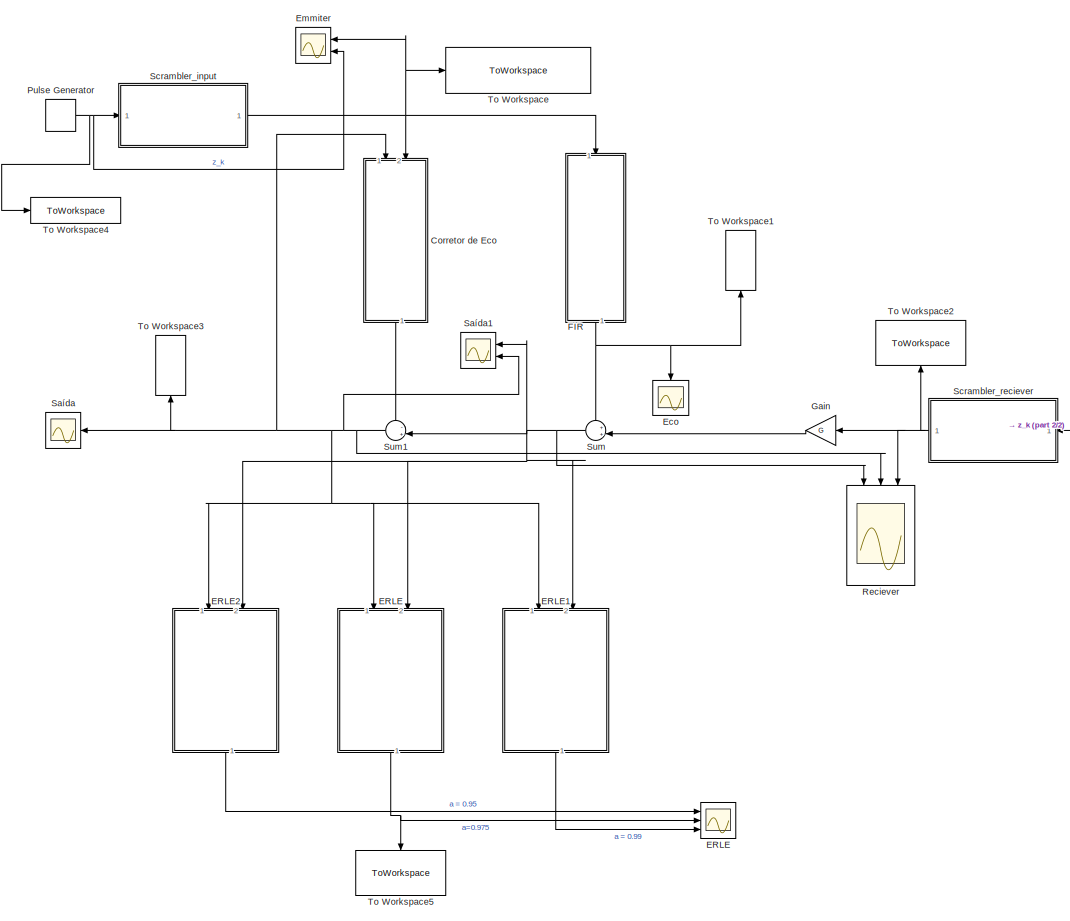
[diagram: root canvas - part 1/2, most of the canvas]
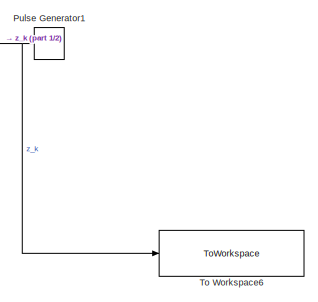
[diagram: root canvas - part 2/2, middle right region]
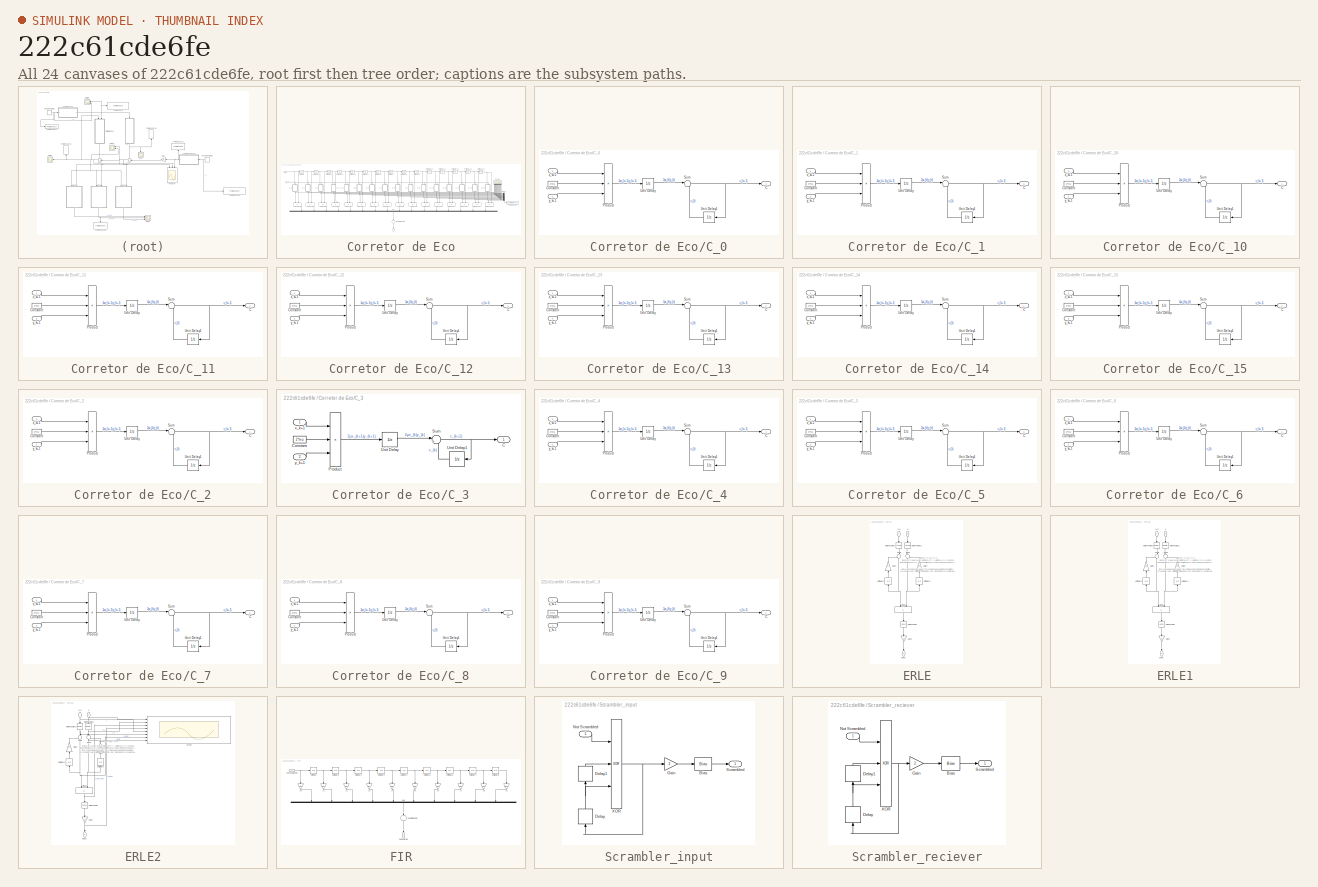
[diagram: thumbnail index - all 24 canvases of the model, root first then tree order]
MODEL slx_222c61cde6fe
KIND model
CONFIG AbsTol = auto
CONFIG EnableMultiTasking = off
CONFIG FixedStep = sampleTime
CONFIG MaxStep = auto
CONFIG MinStep = auto
CONFIG RelTol = 1e-3
CONFIG SampleTimeConstraint = Unconstrained
CONFIG Solver = FixedStepAuto
CONFIG SolverName = FixedStepAuto
CONFIG StartTime = 0.0
CONFIG StopTime = 1000
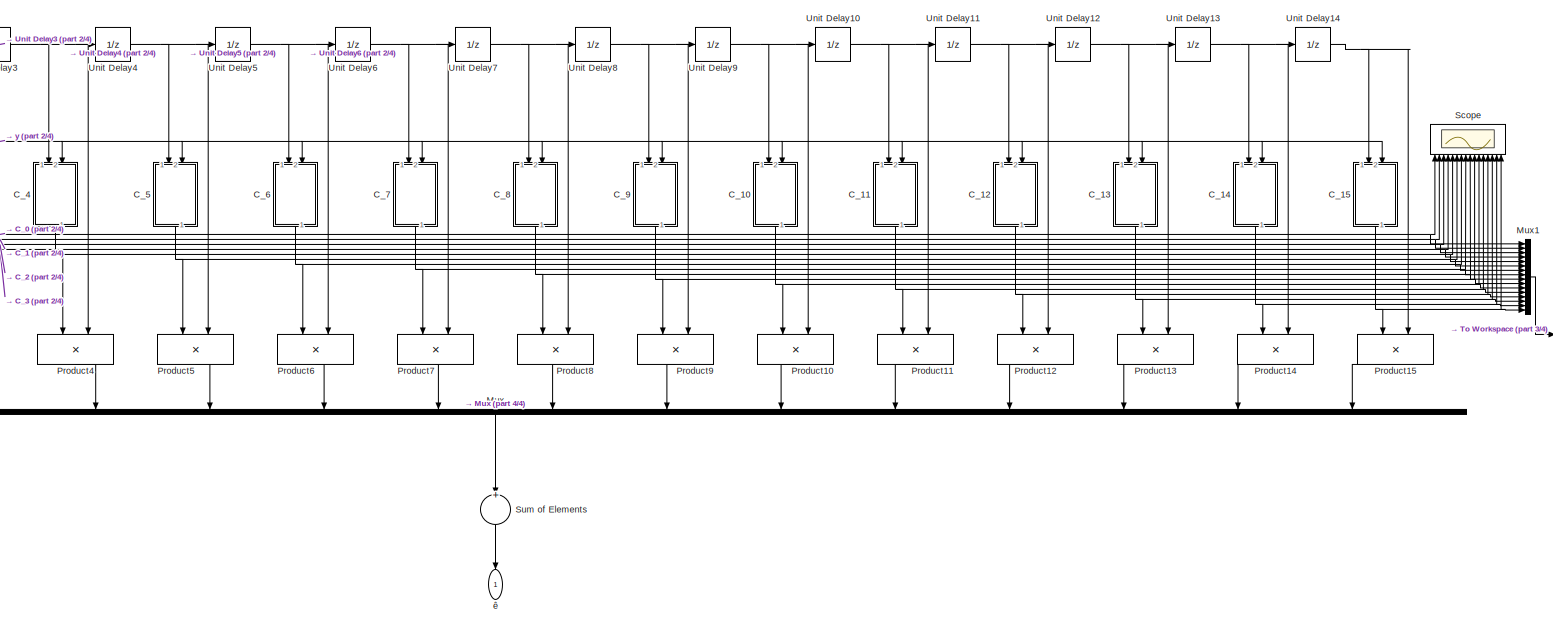
[diagram: Corretor de Eco - part 1/4, center side, full height]
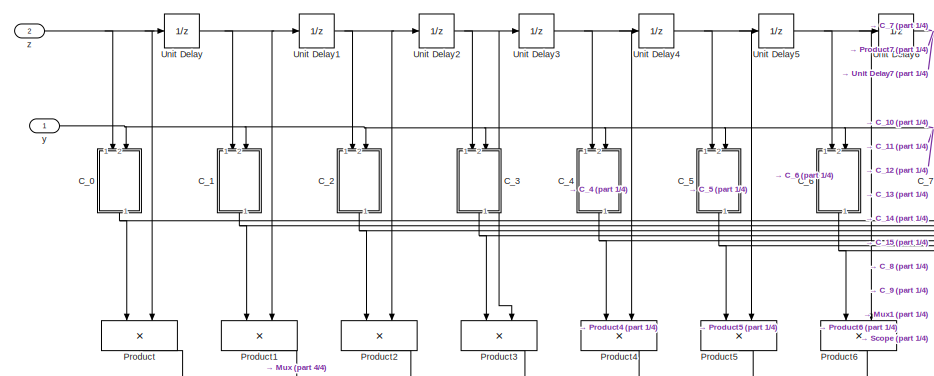
[diagram: Corretor de Eco - part 2/4, middle left region]
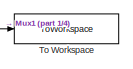
[diagram: Corretor de Eco - part 3/4, middle right region]
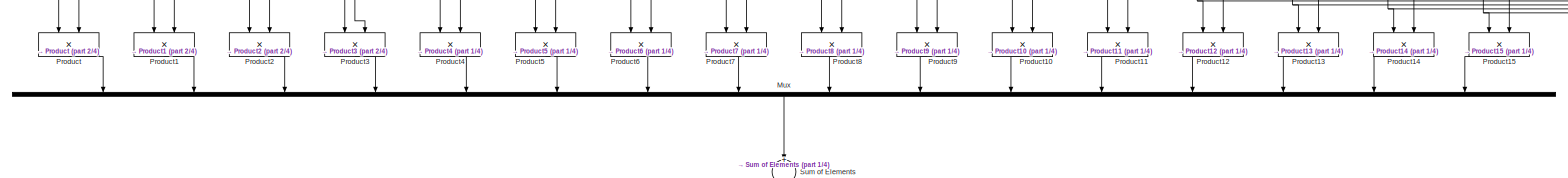
[diagram: Corretor de Eco - part 4/4, full width, middle band]
BLOCK [SubSystem] Corretor de Eco
  Ports = [2, 1]
  RequestExecContextInheritance = off
BLOCK [SubSystem] Corretor de Eco/C_0
  Ports = [2, 1]
  RequestExecContextInheritance = off
BLOCK [Outport] Corretor de Eco/C_0/C
  IconDisplay = Port number
BLOCK [Constant] Corretor de Eco/C_0/Constant
  SampleTime = sampleTime
  Value = 2*mu
BLOCK [Product] Corretor de Eco/C_0/Product
  InputSameDT = off
  Inputs = 3
  OutDataTypeStr = Inherit: Inherit via internal rule
  Ports = [3, 1]
  RndMeth = Floor
  SaturateOnIntegerOverflow = off
BLOCK [Sum] Corretor de Eco/C_0/Sum
  IconShape = round
  InputSameDT = off
  Inputs = |++
  OutDataTypeStr = Inherit: Inherit via internal rule
  Ports = [2, 1]
  SaturateOnIntegerOverflow = off
BLOCK [UnitDelay] Corretor de Eco/C_0/Unit Delay
  HasFrameUpgradeWarning = on
  SampleTime = -1
BLOCK [UnitDelay] Corretor de Eco/C_0/Unit Delay1
  HasFrameUpgradeWarning = on
  SampleTime = -1
BLOCK [Inport] Corretor de Eco/C_0/x_k+1
  IconDisplay = Port number
BLOCK [Inport] Corretor de Eco/C_0/y_k+1
  IconDisplay = Port number
  Port = 2
BLOCK [SubSystem] Corretor de Eco/C_1
  Ports = [2, 1]
  RequestExecContextInheritance = off
BLOCK [Outport] Corretor de Eco/C_1/C
  IconDisplay = Port number
BLOCK [Constant] Corretor de Eco/C_1/Constant
  SampleTime = sampleTime
  Value = 2*mu
BLOCK [Product] Corretor de Eco/C_1/Product
  InputSameDT = off
  Inputs = 3
  OutDataTypeStr = Inherit: Inherit via internal rule
  Ports = [3, 1]
  RndMeth = Floor
  SaturateOnIntegerOverflow = off
BLOCK [Sum] Corretor de Eco/C_1/Sum
  IconShape = round
  InputSameDT = off
  Inputs = |++
  OutDataTypeStr = Inherit: Inherit via internal rule
  Ports = [2, 1]
  SaturateOnIntegerOverflow = off
BLOCK [UnitDelay] Corretor de Eco/C_1/Unit Delay
  HasFrameUpgradeWarning = on
  SampleTime = -1
BLOCK [UnitDelay] Corretor de Eco/C_1/Unit Delay1
  HasFrameUpgradeWarning = on
  SampleTime = -1
BLOCK [Inport] Corretor de Eco/C_1/x_k+1
  IconDisplay = Port number
BLOCK [Inport] Corretor de Eco/C_1/y_k+1
  IconDisplay = Port number
  Port = 2
BLOCK [SubSystem] Corretor de Eco/C_10
  Ports = [2, 1]
  RequestExecContextInheritance = off
BLOCK [Outport] Corretor de Eco/C_10/C
  IconDisplay = Port number
BLOCK [Constant] Corretor de Eco/C_10/Constant
  Value = 2*mu
BLOCK [Product] Corretor de Eco/C_10/Product
  InputSameDT = off
  Inputs = 3
  OutDataTypeStr = Inherit: Inherit via internal rule
  Ports = [3, 1]
  RndMeth = Floor
  SaturateOnIntegerOverflow = off
BLOCK [Sum] Corretor de Eco/C_10/Sum
  IconShape = round
  InputSameDT = off
  Inputs = |++
  OutDataTypeStr = Inherit: Inherit via internal rule
  Ports = [2, 1]
  SaturateOnIntegerOverflow = off
BLOCK [UnitDelay] Corretor de Eco/C_10/Unit Delay
  HasFrameUpgradeWarning = on
  SampleTime = -1
BLOCK [UnitDelay] Corretor de Eco/C_10/Unit Delay1
  HasFrameUpgradeWarning = on
  SampleTime = -1
BLOCK [Inport] Corretor de Eco/C_10/x_k+1
  IconDisplay = Port number
BLOCK [Inport] Corretor de Eco/C_10/y_k+1
  IconDisplay = Port number
  Port = 2
BLOCK [SubSystem] Corretor de Eco/C_11
  Ports = [2, 1]
  RequestExecContextInheritance = off
BLOCK [Outport] Corretor de Eco/C_11/C
  IconDisplay = Port number
BLOCK [Constant] Corretor de Eco/C_11/Constant
  Value = 2*mu
BLOCK [Product] Corretor de Eco/C_11/Product
  InputSameDT = off
  Inputs = 3
  OutDataTypeStr = Inherit: Inherit via internal rule
  Ports = [3, 1]
  RndMeth = Floor
  SaturateOnIntegerOverflow = off
BLOCK [Sum] Corretor de Eco/C_11/Sum
  IconShape = round
  InputSameDT = off
  Inputs = |++
  OutDataTypeStr = Inherit: Inherit via internal rule
  Ports = [2, 1]
  SaturateOnIntegerOverflow = off
BLOCK [UnitDelay] Corretor de Eco/C_11/Unit Delay
  HasFrameUpgradeWarning = on
  SampleTime = -1
BLOCK [UnitDelay] Corretor de Eco/C_11/Unit Delay1
  HasFrameUpgradeWarning = on
  SampleTime = -1
BLOCK [Inport] Corretor de Eco/C_11/x_k+1
  IconDisplay = Port number
BLOCK [Inport] Corretor de Eco/C_11/y_k+1
  IconDisplay = Port number
  Port = 2
BLOCK [SubSystem] Corretor de Eco/C_12
  Ports = [2, 1]
  RequestExecContextInheritance = off
BLOCK [Outport] Corretor de Eco/C_12/C
  IconDisplay = Port number
BLOCK [Constant] Corretor de Eco/C_12/Constant
  Value = 2*mu
BLOCK [Product] Corretor de Eco/C_12/Product
  InputSameDT = off
  Inputs = 3
  OutDataTypeStr = Inherit: Inherit via internal rule
  Ports = [3, 1]
  RndMeth = Floor
  SaturateOnIntegerOverflow = off
BLOCK [Sum] Corretor de Eco/C_12/Sum
  IconShape = round
  InputSameDT = off
  Inputs = |++
  OutDataTypeStr = Inherit: Inherit via internal rule
  Ports = [2, 1]
  SaturateOnIntegerOverflow = off
BLOCK [UnitDelay] Corretor de Eco/C_12/Unit Delay
  HasFrameUpgradeWarning = on
  SampleTime = -1
BLOCK [UnitDelay] Corretor de Eco/C_12/Unit Delay1
  HasFrameUpgradeWarning = on
  SampleTime = -1
BLOCK [Inport] Corretor de Eco/C_12/x_k+1
  IconDisplay = Port number
BLOCK [Inport] Corretor de Eco/C_12/y_k+1
  IconDisplay = Port number
  Port = 2
BLOCK [SubSystem] Corretor de Eco/C_13
  Ports = [2, 1]
  RequestExecContextInheritance = off
BLOCK [Outport] Corretor de Eco/C_13/C
  IconDisplay = Port number
BLOCK [Constant] Corretor de Eco/C_13/Constant
  Value = 2*mu
BLOCK [Product] Corretor de Eco/C_13/Product
  InputSameDT = off
  Inputs = 3
  OutDataTypeStr = Inherit: Inherit via internal rule
  Ports = [3, 1]
  RndMeth = Floor
  SaturateOnIntegerOverflow = off
BLOCK [Sum] Corretor de Eco/C_13/Sum
  IconShape = round
  InputSameDT = off
  Inputs = |++
  OutDataTypeStr = Inherit: Inherit via internal rule
  Ports = [2, 1]
  SaturateOnIntegerOverflow = off
BLOCK [UnitDelay] Corretor de Eco/C_13/Unit Delay
  HasFrameUpgradeWarning = on
  SampleTime = -1
BLOCK [UnitDelay] Corretor de Eco/C_13/Unit Delay1
  HasFrameUpgradeWarning = on
  SampleTime = -1
BLOCK [Inport] Corretor de Eco/C_13/x_k+1
  IconDisplay = Port number
BLOCK [Inport] Corretor de Eco/C_13/y_k+1
  IconDisplay = Port number
  Port = 2
BLOCK [SubSystem] Corretor de Eco/C_14
  Ports = [2, 1]
  RequestExecContextInheritance = off
BLOCK [Outport] Corretor de Eco/C_14/C
  IconDisplay = Port number
BLOCK [Constant] Corretor de Eco/C_14/Constant
  Value = 2*mu
BLOCK [Product] Corretor de Eco/C_14/Product
  InputSameDT = off
  Inputs = 3
  OutDataTypeStr = Inherit: Inherit via internal rule
  Ports = [3, 1]
  RndMeth = Floor
  SaturateOnIntegerOverflow = off
BLOCK [Sum] Corretor de Eco/C_14/Sum
  IconShape = round
  InputSameDT = off
  Inputs = |++
  OutDataTypeStr = Inherit: Inherit via internal rule
  Ports = [2, 1]
  SaturateOnIntegerOverflow = off
BLOCK [UnitDelay] Corretor de Eco/C_14/Unit Delay
  HasFrameUpgradeWarning = on
  SampleTime = -1
BLOCK [UnitDelay] Corretor de Eco/C_14/Unit Delay1
  HasFrameUpgradeWarning = on
  SampleTime = -1
BLOCK [Inport] Corretor de Eco/C_14/x_k+1
  IconDisplay = Port number
BLOCK [Inport] Corretor de Eco/C_14/y_k+1
  IconDisplay = Port number
  Port = 2
BLOCK [SubSystem] Corretor de Eco/C_15
  Ports = [2, 1]
  RequestExecContextInheritance = off
BLOCK [Outport] Corretor de Eco/C_15/C
  IconDisplay = Port number
BLOCK [Constant] Corretor de Eco/C_15/Constant
  Value = 2*mu
BLOCK [Product] Corretor de Eco/C_15/Product
  InputSameDT = off
  Inputs = 3
  OutDataTypeStr = Inherit: Inherit via internal rule
  Ports = [3, 1]
  RndMeth = Floor
  SaturateOnIntegerOverflow = off
BLOCK [Sum] Corretor de Eco/C_15/Sum
  IconShape = round
  InputSameDT = off
  Inputs = |++
  OutDataTypeStr = Inherit: Inherit via internal rule
  Ports = [2, 1]
  SaturateOnIntegerOverflow = off
BLOCK [UnitDelay] Corretor de Eco/C_15/Unit Delay
  HasFrameUpgradeWarning = on
  SampleTime = -1
BLOCK [UnitDelay] Corretor de Eco/C_15/Unit Delay1
  HasFrameUpgradeWarning = on
  SampleTime = -1
BLOCK [Inport] Corretor de Eco/C_15/x_k+1
  IconDisplay = Port number
BLOCK [Inport] Corretor de Eco/C_15/y_k+1
  IconDisplay = Port number
  Port = 2
BLOCK [SubSystem] Corretor de Eco/C_2
  Ports = [2, 1]
  RequestExecContextInheritance = off
BLOCK [Outport] Corretor de Eco/C_2/C
  IconDisplay = Port number
BLOCK [Constant] Corretor de Eco/C_2/Constant
  Value = 2*mu
BLOCK [Product] Corretor de Eco/C_2/Product
  InputSameDT = off
  Inputs = 3
  OutDataTypeStr = Inherit: Inherit via internal rule
  Ports = [3, 1]
  RndMeth = Floor
  SaturateOnIntegerOverflow = off
BLOCK [Sum] Corretor de Eco/C_2/Sum
  IconShape = round
  InputSameDT = off
  Inputs = |++
  OutDataTypeStr = Inherit: Inherit via internal rule
  Ports = [2, 1]
  SaturateOnIntegerOverflow = off
BLOCK [UnitDelay] Corretor de Eco/C_2/Unit Delay
  HasFrameUpgradeWarning = on
  SampleTime = -1
BLOCK [UnitDelay] Corretor de Eco/C_2/Unit Delay1
  HasFrameUpgradeWarning = on
  SampleTime = -1
BLOCK [Inport] Corretor de Eco/C_2/x_k+1
  IconDisplay = Port number
BLOCK [Inport] Corretor de Eco/C_2/y_k+1
  IconDisplay = Port number
  Port = 2
BLOCK [SubSystem] Corretor de Eco/C_3
  Ports = [2, 1]
  RequestExecContextInheritance = off
BLOCK [Outport] Corretor de Eco/C_3/C
  IconDisplay = Port number
BLOCK [Constant] Corretor de Eco/C_3/Constant
  Value = 2*mu
BLOCK [Product] Corretor de Eco/C_3/Product
  InputSameDT = off
  Inputs = 3
  OutDataTypeStr = Inherit: Inherit via internal rule
  Ports = [3, 1]
  RndMeth = Floor
  SaturateOnIntegerOverflow = off
BLOCK [Sum] Corretor de Eco/C_3/Sum
  IconShape = round
  InputSameDT = off
  Inputs = |++
  OutDataTypeStr = Inherit: Inherit via internal rule
  Ports = [2, 1]
  SaturateOnIntegerOverflow = off
BLOCK [UnitDelay] Corretor de Eco/C_3/Unit Delay
  HasFrameUpgradeWarning = on
  SampleTime = -1
BLOCK [UnitDelay] Corretor de Eco/C_3/Unit Delay1
  HasFrameUpgradeWarning = on
  SampleTime = -1
BLOCK [Inport] Corretor de Eco/C_3/x_k+1
  IconDisplay = Port number
BLOCK [Inport] Corretor de Eco/C_3/y_k+1
  IconDisplay = Port number
  Port = 2
BLOCK [SubSystem] Corretor de Eco/C_4
  Ports = [2, 1]
  RequestExecContextInheritance = off
BLOCK [Outport] Corretor de Eco/C_4/C
  IconDisplay = Port number
BLOCK [Constant] Corretor de Eco/C_4/Constant
  Value = 2*mu
BLOCK [Product] Corretor de Eco/C_4/Product
  InputSameDT = off
  Inputs = 3
  OutDataTypeStr = Inherit: Inherit via internal rule
  Ports = [3, 1]
  RndMeth = Floor
  SaturateOnIntegerOverflow = off
BLOCK [Sum] Corretor de Eco/C_4/Sum
  IconShape = round
  InputSameDT = off
  Inputs = |++
  OutDataTypeStr = Inherit: Inherit via internal rule
  Ports = [2, 1]
  SaturateOnIntegerOverflow = off
BLOCK [UnitDelay] Corretor de Eco/C_4/Unit Delay
  HasFrameUpgradeWarning = on
  SampleTime = -1
BLOCK [UnitDelay] Corretor de Eco/C_4/Unit Delay1
  HasFrameUpgradeWarning = on
  SampleTime = -1
BLOCK [Inport] Corretor de Eco/C_4/x_k+1
  IconDisplay = Port number
BLOCK [Inport] Corretor de Eco/C_4/y_k+1
  IconDisplay = Port number
  Port = 2
BLOCK [SubSystem] Corretor de Eco/C_5
  Ports = [2, 1]
  RequestExecContextInheritance = off
BLOCK [Outport] Corretor de Eco/C_5/C
  IconDisplay = Port number
BLOCK [Constant] Corretor de Eco/C_5/Constant
  Value = 2*mu
BLOCK [Product] Corretor de Eco/C_5/Product
  InputSameDT = off
  Inputs = 3
  OutDataTypeStr = Inherit: Inherit via internal rule
  Ports = [3, 1]
  RndMeth = Floor
  SaturateOnIntegerOverflow = off
BLOCK [Sum] Corretor de Eco/C_5/Sum
  IconShape = round
  InputSameDT = off
  Inputs = |++
  OutDataTypeStr = Inherit: Inherit via internal rule
  Ports = [2, 1]
  SaturateOnIntegerOverflow = off
BLOCK [UnitDelay] Corretor de Eco/C_5/Unit Delay
  HasFrameUpgradeWarning = on
  SampleTime = -1
BLOCK [UnitDelay] Corretor de Eco/C_5/Unit Delay1
  HasFrameUpgradeWarning = on
  SampleTime = -1
BLOCK [Inport] Corretor de Eco/C_5/x_k+1
  IconDisplay = Port number
BLOCK [Inport] Corretor de Eco/C_5/y_k+1
  IconDisplay = Port number
  Port = 2
BLOCK [SubSystem] Corretor de Eco/C_6
  Ports = [2, 1]
  RequestExecContextInheritance = off
BLOCK [Outport] Corretor de Eco/C_6/C
  IconDisplay = Port number
BLOCK [Constant] Corretor de Eco/C_6/Constant
  Value = 2*mu
BLOCK [Product] Corretor de Eco/C_6/Product
  InputSameDT = off
  Inputs = 3
  OutDataTypeStr = Inherit: Inherit via internal rule
  Ports = [3, 1]
  RndMeth = Floor
  SaturateOnIntegerOverflow = off
BLOCK [Sum] Corretor de Eco/C_6/Sum
  IconShape = round
  InputSameDT = off
  Inputs = |++
  OutDataTypeStr = Inherit: Inherit via internal rule
  Ports = [2, 1]
  SaturateOnIntegerOverflow = off
BLOCK [UnitDelay] Corretor de Eco/C_6/Unit Delay
  HasFrameUpgradeWarning = on
  SampleTime = -1
BLOCK [UnitDelay] Corretor de Eco/C_6/Unit Delay1
  HasFrameUpgradeWarning = on
  SampleTime = -1
BLOCK [Inport] Corretor de Eco/C_6/x_k+1
  IconDisplay = Port number
BLOCK [Inport] Corretor de Eco/C_6/y_k+1
  IconDisplay = Port number
  Port = 2
BLOCK [SubSystem] Corretor de Eco/C_7
  Ports = [2, 1]
  RequestExecContextInheritance = off
BLOCK [Outport] Corretor de Eco/C_7/C
  IconDisplay = Port number
BLOCK [Constant] Corretor de Eco/C_7/Constant
  Value = 2*mu
BLOCK [Product] Corretor de Eco/C_7/Product
  InputSameDT = off
  Inputs = 3
  OutDataTypeStr = Inherit: Inherit via internal rule
  Ports = [3, 1]
  RndMeth = Floor
  SaturateOnIntegerOverflow = off
BLOCK [Sum] Corretor de Eco/C_7/Sum
  IconShape = round
  InputSameDT = off
  Inputs = |++
  OutDataTypeStr = Inherit: Inherit via internal rule
  Ports = [2, 1]
  SaturateOnIntegerOverflow = off
BLOCK [UnitDelay] Corretor de Eco/C_7/Unit Delay
  HasFrameUpgradeWarning = on
  SampleTime = -1
BLOCK [UnitDelay] Corretor de Eco/C_7/Unit Delay1
  HasFrameUpgradeWarning = on
  SampleTime = -1
BLOCK [Inport] Corretor de Eco/C_7/x_k+1
  IconDisplay = Port number
BLOCK [Inport] Corretor de Eco/C_7/y_k+1
  IconDisplay = Port number
  Port = 2
BLOCK [SubSystem] Corretor de Eco/C_8
  Ports = [2, 1]
  RequestExecContextInheritance = off
BLOCK [Outport] Corretor de Eco/C_8/C
  IconDisplay = Port number
BLOCK [Constant] Corretor de Eco/C_8/Constant
  Value = 2*mu
BLOCK [Product] Corretor de Eco/C_8/Product
  InputSameDT = off
  Inputs = 3
  OutDataTypeStr = Inherit: Inherit via internal rule
  Ports = [3, 1]
  RndMeth = Floor
  SaturateOnIntegerOverflow = off
BLOCK [Sum] Corretor de Eco/C_8/Sum
  IconShape = round
  InputSameDT = off
  Inputs = |++
  OutDataTypeStr = Inherit: Inherit via internal rule
  Ports = [2, 1]
  SaturateOnIntegerOverflow = off
BLOCK [UnitDelay] Corretor de Eco/C_8/Unit Delay
  HasFrameUpgradeWarning = on
  SampleTime = -1
BLOCK [UnitDelay] Corretor de Eco/C_8/Unit Delay1
  HasFrameUpgradeWarning = on
  SampleTime = -1
BLOCK [Inport] Corretor de Eco/C_8/x_k+1
  IconDisplay = Port number
BLOCK [Inport] Corretor de Eco/C_8/y_k+1
  IconDisplay = Port number
  Port = 2
BLOCK [SubSystem] Corretor de Eco/C_9
  Ports = [2, 1]
  RequestExecContextInheritance = off
BLOCK [Outport] Corretor de Eco/C_9/C
  IconDisplay = Port number
BLOCK [Constant] Corretor de Eco/C_9/Constant
  Value = 2*mu
BLOCK [Product] Corretor de Eco/C_9/Product
  InputSameDT = off
  Inputs = 3
  OutDataTypeStr = Inherit: Inherit via internal rule
  Ports = [3, 1]
  RndMeth = Floor
  SaturateOnIntegerOverflow = off
BLOCK [Sum] Corretor de Eco/C_9/Sum
  IconShape = round
  InputSameDT = off
  Inputs = |++
  OutDataTypeStr = Inherit: Inherit via internal rule
  Ports = [2, 1]
  SaturateOnIntegerOverflow = off
BLOCK [UnitDelay] Corretor de Eco/C_9/Unit Delay
  HasFrameUpgradeWarning = on
  SampleTime = -1
BLOCK [UnitDelay] Corretor de Eco/C_9/Unit Delay1
  HasFrameUpgradeWarning = on
  SampleTime = -1
BLOCK [Inport] Corretor de Eco/C_9/x_k+1
  IconDisplay = Port number
BLOCK [Inport] Corretor de Eco/C_9/y_k+1
  IconDisplay = Port number
  Port = 2
BLOCK [Mux] Corretor de Eco/Mux
  DisplayOption = bar
  Inputs = 16
  Ports = [16, 1]
BLOCK [Mux] Corretor de Eco/Mux1
  DisplayOption = bar
  Inputs = 16
  Ports = [16, 1]
BLOCK [Product] Corretor de Eco/Product
  InputSameDT = off
  OutDataTypeStr = Inherit: Inherit via internal rule
  Ports = [2, 1]
  RndMeth = Floor
  SaturateOnIntegerOverflow = off
BLOCK [Product] Corretor de Eco/Product1
  InputSameDT = off
  OutDataTypeStr = Inherit: Inherit via internal rule
  Ports = [2, 1]
  RndMeth = Floor
  SaturateOnIntegerOverflow = off
BLOCK [Product] Corretor de Eco/Product10
  InputSameDT = off
  OutDataTypeStr = Inherit: Inherit via internal rule
  Ports = [2, 1]
  RndMeth = Floor
  SaturateOnIntegerOverflow = off
BLOCK [Product] Corretor de Eco/Product11
  InputSameDT = off
  OutDataTypeStr = Inherit: Inherit via internal rule
  Ports = [2, 1]
  RndMeth = Floor
  SaturateOnIntegerOverflow = off
BLOCK [Product] Corretor de Eco/Product12
  InputSameDT = off
  OutDataTypeStr = Inherit: Inherit via internal rule
  Ports = [2, 1]
  RndMeth = Floor
  SaturateOnIntegerOverflow = off
BLOCK [Product] Corretor de Eco/Product13
  InputSameDT = off
  OutDataTypeStr = Inherit: Inherit via internal rule
  Ports = [2, 1]
  RndMeth = Floor
  SaturateOnIntegerOverflow = off
BLOCK [Product] Corretor de Eco/Product14
  InputSameDT = off
  OutDataTypeStr = Inherit: Inherit via internal rule
  Ports = [2, 1]
  RndMeth = Floor
  SaturateOnIntegerOverflow = off
BLOCK [Product] Corretor de Eco/Product15
  InputSameDT = off
  OutDataTypeStr = Inherit: Inherit via internal rule
  Ports = [2, 1]
  RndMeth = Floor
  SaturateOnIntegerOverflow = off
BLOCK [Product] Corretor de Eco/Product2
  InputSameDT = off
  OutDataTypeStr = Inherit: Inherit via internal rule
  Ports = [2, 1]
  RndMeth = Floor
  SaturateOnIntegerOverflow = off
BLOCK [Product] Corretor de Eco/Product3
  InputSameDT = off
  OutDataTypeStr = Inherit: Inherit via internal rule
  Ports = [2, 1]
  RndMeth = Floor
  SaturateOnIntegerOverflow = off
BLOCK [Product] Corretor de Eco/Product4
  InputSameDT = off
  OutDataTypeStr = Inherit: Inherit via internal rule
  Ports = [2, 1]
  RndMeth = Floor
  SaturateOnIntegerOverflow = off
BLOCK [Product] Corretor de Eco/Product5
  InputSameDT = off
  OutDataTypeStr = Inherit: Inherit via internal rule
  Ports = [2, 1]
  RndMeth = Floor
  SaturateOnIntegerOverflow = off
BLOCK [Product] Corretor de Eco/Product6
  InputSameDT = off
  OutDataTypeStr = Inherit: Inherit via internal rule
  Ports = [2, 1]
  RndMeth = Floor
  SaturateOnIntegerOverflow = off
BLOCK [Product] Corretor de Eco/Product7
  InputSameDT = off
  OutDataTypeStr = Inherit: Inherit via internal rule
  Ports = [2, 1]
  RndMeth = Floor
  SaturateOnIntegerOverflow = off
BLOCK [Product] Corretor de Eco/Product8
  InputSameDT = off
  OutDataTypeStr = Inherit: Inherit via internal rule
  Ports = [2, 1]
  RndMeth = Floor
  SaturateOnIntegerOverflow = off
BLOCK [Product] Corretor de Eco/Product9
  InputSameDT = off
  OutDataTypeStr = Inherit: Inherit via internal rule
  Ports = [2, 1]
  RndMeth = Floor
  SaturateOnIntegerOverflow = off
BLOCK [Scope] Corretor de Eco/Scope
  Floating = off
  NumInputPorts = 16
  Ports = [16]
  ScopeSpecificationString = Simulink.scopes.TimeScopeBlockCfg('CurrentConfiguration', extmgr.ConfigurationSet(extmgr.Configuration('Core','General UI',true),extmgr.Configuration('Core','Source UI',true),extmgr.Configuration('Sources','WiredSimulink',true,'DataLoggingVariableName','ScopeData1'),extmgr.Configuration('Visuals','Time Domain',true,'SerializedDisplays',{struct('MinYLimReal','-0.15387','MaxYLimReal','0.078','YLabel...<+11887ch>
BLOCK [Sum] Corretor de Eco/Sum of Elements
  InputSameDT = off
  Inputs = +
  OutDataTypeStr = Inherit: Inherit via internal rule
  Ports = [1, 1]
  SaturateOnIntegerOverflow = off
BLOCK [ToWorkspace] Corretor de Eco/To Workspace
  FixptAsFi = on
  MaxDataPoints = inf
  Ports = [1]
  SampleTime = -1
  SaveFormat = Structure With Time
  VariableName = Cancelador_Eco_Data
BLOCK [UnitDelay] Corretor de Eco/Unit Delay
  HasFrameUpgradeWarning = on
  SampleTime = -1
BLOCK [UnitDelay] Corretor de Eco/Unit Delay1
  HasFrameUpgradeWarning = on
  SampleTime = -1
BLOCK [UnitDelay] Corretor de Eco/Unit Delay10
  HasFrameUpgradeWarning = on
  SampleTime = -1
BLOCK [UnitDelay] Corretor de Eco/Unit Delay11
  HasFrameUpgradeWarning = on
  SampleTime = -1
BLOCK [UnitDelay] Corretor de Eco/Unit Delay12
  HasFrameUpgradeWarning = on
  SampleTime = -1
BLOCK [UnitDelay] Corretor de Eco/Unit Delay13
  HasFrameUpgradeWarning = on
  SampleTime = -1
BLOCK [UnitDelay] Corretor de Eco/Unit Delay14
  HasFrameUpgradeWarning = on
  SampleTime = -1
BLOCK [UnitDelay] Corretor de Eco/Unit Delay2
  HasFrameUpgradeWarning = on
  SampleTime = -1
BLOCK [UnitDelay] Corretor de Eco/Unit Delay3
  HasFrameUpgradeWarning = on
  SampleTime = -1
BLOCK [UnitDelay] Corretor de Eco/Unit Delay4
  HasFrameUpgradeWarning = on
  SampleTime = -1
BLOCK [UnitDelay] Corretor de Eco/Unit Delay5
  HasFrameUpgradeWarning = on
  SampleTime = -1
BLOCK [UnitDelay] Corretor de Eco/Unit Delay6
  HasFrameUpgradeWarning = on
  SampleTime = -1
BLOCK [UnitDelay] Corretor de Eco/Unit Delay7
  HasFrameUpgradeWarning = on
  SampleTime = -1
BLOCK [UnitDelay] Corretor de Eco/Unit Delay8
  HasFrameUpgradeWarning = on
  SampleTime = -1
BLOCK [UnitDelay] Corretor de Eco/Unit Delay9
  HasFrameUpgradeWarning = on
  SampleTime = -1
BLOCK [Inport] Corretor de Eco/y
  IconDisplay = Port number
BLOCK [Inport] Corretor de Eco/z
  IconDisplay = Port number
  Port = 2
BLOCK [Outport] Corretor de Eco/ê
  IconDisplay = Port number
BLOCK [SubSystem] ERLE
  Ports = [2, 1]
  RequestExecContextInheritance = off
BLOCK [Scope] ERLE 
  Floating = off
  NumInputPorts = 3
  Ports = [3]
  ScopeSpecificationString = Simulink.scopes.TimeScopeBlockCfg('CurrentConfiguration', extmgr.ConfigurationSet(extmgr.Configuration('Core','General UI',true),extmgr.Configuration('Core','Source UI',true),extmgr.Configuration('Sources','WiredSimulink',true,'DataLoggingVariableName','ScopeData2'),extmgr.Configuration('Visuals','Time Domain',true,'SerializedDisplays',{struct('MinYLimReal','-385.62042','MaxYLimReal','3467.65604',...<+1578ch>
BLOCK [Product] ERLE/Divide
  InputSameDT = off
  Inputs = /*
  OutDataTypeStr = Inherit: Inherit via internal rule
  Ports = [2, 1]
  RndMeth = Floor
BLOCK [Outport] ERLE/ERLE
  IconDisplay = Port number
BLOCK [Gain] ERLE/Gain1
  Gain = 0.975
  OutDataTypeStr = Inherit: Inherit via internal rule
  ParamDataTypeStr = Inherit: Inherit via internal rule
  SaturateOnIntegerOverflow = off
BLOCK [Gain] ERLE/Gain2
  Gain = 10
  OutDataTypeStr = Inherit: Inherit via internal rule
  ParamDataTypeStr = Inherit: Inherit via internal rule
  SaturateOnIntegerOverflow = off
BLOCK [Gain] ERLE/Gain3
  Gain = 0.975
  OutDataTypeStr = Inherit: Inherit via internal rule
  ParamDataTypeStr = Inherit: Inherit via internal rule
  SaturateOnIntegerOverflow = off
BLOCK [Math] ERLE/Math Function
  Operator = log10
  Ports = [1, 1]
BLOCK [Math] ERLE/Math Function1
  Operator = square
  Ports = [1, 1]
  SaturateOnIntegerOverflow = off
BLOCK [Math] ERLE/Math Function2
  Operator = square
  Ports = [1, 1]
  SaturateOnIntegerOverflow = off
BLOCK [Sum] ERLE/Sum2
  IconShape = round
  InputSameDT = off
  Inputs = ++|
  OutDataTypeStr = Inherit: Inherit via internal rule
  Ports = [2, 1]
  SaturateOnIntegerOverflow = off
BLOCK [Sum] ERLE/Sum3
  IconShape = round
  InputSameDT = off
  Inputs = |++
  OutDataTypeStr = Inherit: Inherit via internal rule
  Ports = [2, 1]
  SaturateOnIntegerOverflow = off
BLOCK [UnitDelay] ERLE/Unit Delay1
  HasFrameUpgradeWarning = on
  SampleTime = -1
BLOCK [UnitDelay] ERLE/Unit Delay2
  HasFrameUpgradeWarning = on
  SampleTime = -1
BLOCK [Inport] ERLE/e
  IconDisplay = Port number
  Port = 2
BLOCK [Inport] ERLE/e - ê
  IconDisplay = Port number
BLOCK [SubSystem] ERLE1
  Ports = [2, 1]
  RequestExecContextInheritance = off
BLOCK [Product] ERLE1/Divide
  InputSameDT = off
  Inputs = /*
  OutDataTypeStr = Inherit: Inherit via internal rule
  Ports = [2, 1]
  RndMeth = Floor
  SaturateOnIntegerOverflow = off
BLOCK [Outport] ERLE1/ERLE
  IconDisplay = Port number
BLOCK [Gain] ERLE1/Gain1
  Gain = 0.99
  OutDataTypeStr = Inherit: Inherit via internal rule
  ParamDataTypeStr = Inherit: Inherit via internal rule
  SaturateOnIntegerOverflow = off
BLOCK [Gain] ERLE1/Gain2
  Gain = 10
  OutDataTypeStr = Inherit: Inherit via internal rule
  ParamDataTypeStr = Inherit: Inherit via internal rule
  SaturateOnIntegerOverflow = off
BLOCK [Gain] ERLE1/Gain3
  Gain = 0.99
  OutDataTypeStr = Inherit: Inherit via internal rule
  ParamDataTypeStr = Inherit: Inherit via internal rule
  SaturateOnIntegerOverflow = off
BLOCK [Math] ERLE1/Math Function
  Operator = log10
  Ports = [1, 1]
BLOCK [Math] ERLE1/Math Function1
  Operator = magnitude^2
  Ports = [1, 1]
BLOCK [Math] ERLE1/Math Function2
  Operator = magnitude^2
  Ports = [1, 1]
BLOCK [Sum] ERLE1/Sum2
  IconShape = round
  InputSameDT = off
  Inputs = ++|
  OutDataTypeStr = Inherit: Inherit via internal rule
  Ports = [2, 1]
  SaturateOnIntegerOverflow = off
BLOCK [Sum] ERLE1/Sum3
  IconShape = round
  InputSameDT = off
  Inputs = |++
  OutDataTypeStr = Inherit: Inherit via internal rule
  Ports = [2, 1]
  SaturateOnIntegerOverflow = off
BLOCK [UnitDelay] ERLE1/Unit Delay1
  HasFrameUpgradeWarning = on
  SampleTime = -1
BLOCK [UnitDelay] ERLE1/Unit Delay2
  HasFrameUpgradeWarning = on
  SampleTime = -1
BLOCK [Inport] ERLE1/e
  IconDisplay = Port number
  Port = 2
BLOCK [Inport] ERLE1/e - ê
  IconDisplay = Port number
BLOCK [SubSystem] ERLE2
  Ports = [2, 1]
  RequestExecContextInheritance = off
BLOCK [Product] ERLE2/Divide
  InputSameDT = off
  Inputs = /*
  OutDataTypeStr = Inherit: Inherit via internal rule
  Ports = [2, 1]
  RndMeth = Floor
  SaturateOnIntegerOverflow = off
BLOCK [Outport] ERLE2/ERLE
  IconDisplay = Port number
BLOCK [Gain] ERLE2/Gain1
  Gain = 0.95
  OutDataTypeStr = Inherit: Inherit via internal rule
  ParamDataTypeStr = Inherit: Inherit via internal rule
  SaturateOnIntegerOverflow = off
BLOCK [Gain] ERLE2/Gain2
  Gain = 10
  OutDataTypeStr = Inherit: Inherit via internal rule
  ParamDataTypeStr = Inherit: Inherit via internal rule
  SaturateOnIntegerOverflow = off
BLOCK [Gain] ERLE2/Gain3
  Gain = 0.95
  OutDataTypeStr = Inherit: Inherit via internal rule
  ParamDataTypeStr = Inherit: Inherit via internal rule
  SaturateOnIntegerOverflow = off
BLOCK [Math] ERLE2/Math Function
  Operator = log10
  Ports = [1, 1]
BLOCK [Math] ERLE2/Math Function1
  Operator = magnitude^2
  Ports = [1, 1]
BLOCK [Math] ERLE2/Math Function2
  Operator = magnitude^2
  Ports = [1, 1]
BLOCK [Scope] ERLE2/Scope
  Floating = off
  NumInputPorts = 8
  Ports = [8]
  ScopeSpecificationString = Simulink.scopes.TimeScopeBlockCfg('CurrentConfiguration', extmgr.ConfigurationSet(extmgr.Configuration('Core','General UI',true),extmgr.Configuration('Core','Source UI',true),extmgr.Configuration('Sources','WiredSimulink',true,'DataLoggingVariableName','ScopeData2'),extmgr.Configuration('Visuals','Time Domain',true,'SerializedDisplays',{struct('MinYLimReal','-2.825','MaxYLimReal','2.825','YLabelRe...<+11183ch>
BLOCK [Sum] ERLE2/Sum2
  IconShape = round
  InputSameDT = off
  Inputs = ++|
  OutDataTypeStr = Inherit: Inherit via internal rule
  Ports = [2, 1]
  SaturateOnIntegerOverflow = off
BLOCK [Sum] ERLE2/Sum3
  IconShape = round
  InputSameDT = off
  Inputs = |++
  OutDataTypeStr = Inherit: Inherit via internal rule
  Ports = [2, 1]
  SaturateOnIntegerOverflow = off
BLOCK [UnitDelay] ERLE2/Unit Delay1
  HasFrameUpgradeWarning = on
  SampleTime = -1
BLOCK [UnitDelay] ERLE2/Unit Delay2
  HasFrameUpgradeWarning = on
  SampleTime = -1
BLOCK [Inport] ERLE2/e
  IconDisplay = Port number
  Port = 2
BLOCK [Inport] ERLE2/e - ê
  IconDisplay = Port number
BLOCK [Scope] Eco
  Floating = off
  NumInputPorts = 1
  Ports = [1]
  ScopeSpecificationString = Simulink.scopes.TimeScopeBlockCfg('CurrentConfiguration', extmgr.ConfigurationSet(extmgr.Configuration('Core','General UI',true),extmgr.Configuration('Core','Source UI',true),extmgr.Configuration('Sources','WiredSimulink',true,'DataLoggingVariableName','ScopeData2'),extmgr.Configuration('Visuals','Time Domain',true,'SerializedDisplays',{struct('MinYLimReal','-2.7','MaxYLimReal','2.7','YLabelReal',...<+1486ch>
BLOCK [Scope] Emmiter
  Floating = off
  NumInputPorts = 2
  Ports = [2]
  ScopeSpecificationString = Simulink.scopes.TimeScopeBlockCfg('CurrentConfiguration', extmgr.ConfigurationSet(extmgr.Configuration('Core','General UI',true),extmgr.Configuration('Core','Source UI',true),extmgr.Configuration('Sources','WiredSimulink',true,'DataLoggingVariableName','ScopeData1'),extmgr.Configuration('Visuals','Time Domain',true,'SerializedDisplays',{struct('MinYLimReal','-1.12901','MaxYLimReal','1.02536','YLab...<+1501ch>
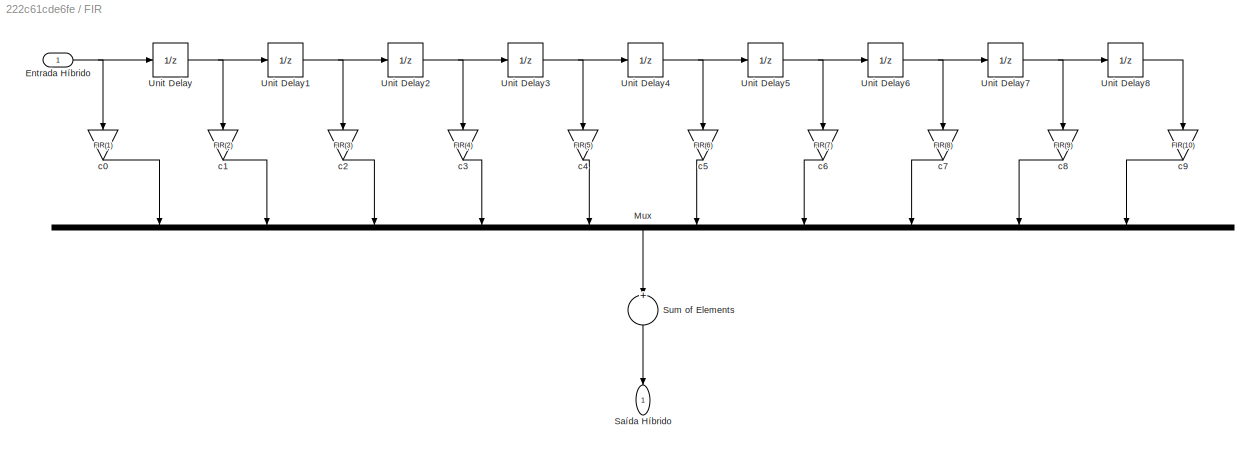
BLOCK [SubSystem] FIR
  Ports = [1, 1]
  RequestExecContextInheritance = off
BLOCK [Inport] FIR/Entrada Híbrido
  IconDisplay = Port number
BLOCK [Mux] FIR/Mux
  DisplayOption = bar
  Inputs = 10
  Ports = [10, 1]
BLOCK [Outport] FIR/Saída Híbrido
  IconDisplay = Port number
BLOCK [Sum] FIR/Sum of Elements
  InputSameDT = off
  Inputs = +
  OutDataTypeStr = Inherit: Inherit via internal rule
  Ports = [1, 1]
  SaturateOnIntegerOverflow = off
BLOCK [UnitDelay] FIR/Unit Delay
  HasFrameUpgradeWarning = on
  SampleTime = -1
BLOCK [UnitDelay] FIR/Unit Delay1
  HasFrameUpgradeWarning = on
  SampleTime = -1
BLOCK [UnitDelay] FIR/Unit Delay2
  HasFrameUpgradeWarning = on
  SampleTime = -1
BLOCK [UnitDelay] FIR/Unit Delay3
  HasFrameUpgradeWarning = on
  SampleTime = -1
BLOCK [UnitDelay] FIR/Unit Delay4
  HasFrameUpgradeWarning = on
  SampleTime = -1
BLOCK [UnitDelay] FIR/Unit Delay5
  HasFrameUpgradeWarning = on
  SampleTime = -1
BLOCK [UnitDelay] FIR/Unit Delay6
  HasFrameUpgradeWarning = on
  SampleTime = -1
BLOCK [UnitDelay] FIR/Unit Delay7
  HasFrameUpgradeWarning = on
  SampleTime = -1
BLOCK [UnitDelay] FIR/Unit Delay8
  HasFrameUpgradeWarning = on
  SampleTime = -1
BLOCK [Gain] FIR/c0
  Gain = FIR(1)
  OutDataTypeStr = Inherit: Inherit via internal rule
  ParamDataTypeStr = Inherit: Inherit via internal rule
  SaturateOnIntegerOverflow = off
BLOCK [Gain] FIR/c1
  Gain = FIR(2)
  OutDataTypeStr = Inherit: Inherit via internal rule
  ParamDataTypeStr = Inherit: Inherit via internal rule
  SaturateOnIntegerOverflow = off
BLOCK [Gain] FIR/c2
  Gain = FIR(3)
  OutDataTypeStr = Inherit: Inherit via internal rule
  ParamDataTypeStr = Inherit: Inherit via internal rule
  SaturateOnIntegerOverflow = off
BLOCK [Gain] FIR/c3
  Gain = FIR(4)
  OutDataTypeStr = Inherit: Inherit via internal rule
  ParamDataTypeStr = Inherit: Inherit via internal rule
  SaturateOnIntegerOverflow = off
BLOCK [Gain] FIR/c4
  Gain = FIR(5)
  OutDataTypeStr = Inherit: Inherit via internal rule
  ParamDataTypeStr = Inherit: Inherit via internal rule
  SaturateOnIntegerOverflow = off
BLOCK [Gain] FIR/c5
  Gain = FIR(6)
  OutDataTypeStr = Inherit: Inherit via internal rule
  ParamDataTypeStr = Inherit: Inherit via internal rule
  SaturateOnIntegerOverflow = off
BLOCK [Gain] FIR/c6
  Gain = FIR(7)
  OutDataTypeStr = Inherit: Inherit via internal rule
  ParamDataTypeStr = Inherit: Inherit via internal rule
  SaturateOnIntegerOverflow = off
BLOCK [Gain] FIR/c7
  Gain = FIR(8)
  OutDataTypeStr = Inherit: Inherit via internal rule
  ParamDataTypeStr = Inherit: Inherit via internal rule
  SaturateOnIntegerOverflow = off
BLOCK [Gain] FIR/c8
  Gain = FIR(9)
  OutDataTypeStr = Inherit: Inherit via internal rule
  ParamDataTypeStr = Inherit: Inherit via internal rule
  SaturateOnIntegerOverflow = off
BLOCK [Gain] FIR/c9
  Gain = FIR(10)
  OutDataTypeStr = Inherit: Inherit via internal rule
  ParamDataTypeStr = Inherit: Inherit via internal rule
  SaturateOnIntegerOverflow = off
BLOCK [Gain] Gain
  Gain = G
  OutDataTypeStr = Inherit: Inherit via internal rule
  ParamDataTypeStr = Inherit: Inherit via internal rule
  SaturateOnIntegerOverflow = off
BLOCK [DiscretePulseGenerator] Pulse Generator
  Amplitude = Emitter.Amp
  Period = 4
  Ports = [0, 1]
  PulseWidth = 2
  SampleTime = sampleTime
BLOCK [DiscretePulseGenerator] Pulse Generator1
  Amplitude = Reciever.Amp
  Period = 4
  Ports = [0, 1]
  PulseWidth = 2
  SampleTime = sampleTime
BLOCK [Scope] Reciever
  Floating = off
  NumInputPorts = 3
  Ports = [3]
  ScopeSpecificationString = Simulink.scopes.TimeScopeBlockCfg('CurrentConfiguration', extmgr.ConfigurationSet(extmgr.Configuration('Core','General UI',true),extmgr.Configuration('Core','Source UI',true),extmgr.Configuration('Sources','WiredSimulink',true,'DataLoggingVariableName','ScopeData2'),extmgr.Configuration('Visuals','Time Domain',true,'SerializedDisplays',{struct('MinYLimReal','-2.825','MaxYLimReal','2.825','YLabelRe...<+2822ch>
BLOCK [Scope] Saída
  Floating = off
  NumInputPorts = 1
  Ports = [1]
  ScopeSpecificationString = Simulink.scopes.TimeScopeBlockCfg('CurrentConfiguration', extmgr.ConfigurationSet(extmgr.Configuration('Core','General UI',true),extmgr.Configuration('Core','Source UI',true),extmgr.Configuration('Sources','WiredSimulink',true,'DataLoggingVariableName','ScopeData1'),extmgr.Configuration('Visuals','Time Domain',true,'SerializedDisplays',{struct('MinYLimReal','-0.000000000000000000000000000000000000...<+1870ch>
BLOCK [Scope] Saída1
  Floating = off
  NumInputPorts = 2
  Ports = [2]
  ScopeSpecificationString = Simulink.scopes.TimeScopeBlockCfg('CurrentConfiguration', extmgr.ConfigurationSet(extmgr.Configuration('Core','General UI',true),extmgr.Configuration('Core','Source UI',true),extmgr.Configuration('Sources','WiredSimulink',true,'DataLoggingVariableName','ScopeData1'),extmgr.Configuration('Visuals','Time Domain',true,'SerializedDisplays',{struct('MinYLimReal','-4747753157351143424.00000','MaxYLimRea...<+1659ch>
BLOCK [SubSystem] Scrambler_input
  Ports = [1, 1]
  RequestExecContextInheritance = off
BLOCK [Bias] Scrambler_input/Bias
  Bias = -1
  SaturateOnIntegerOverflow = off
BLOCK [Delay] Scrambler_input/Delay
  DelayLength = 3
  InputPortMap = u0
  Ports = [1, 1]
BLOCK [Delay] Scrambler_input/Delay1
  InputPortMap = u0
  Ports = [1, 1]
BLOCK [Gain] Scrambler_input/Gain
  Gain = 2
  OutDataTypeStr = double
  ParamDataTypeStr = Inherit: Inherit via internal rule
  SaturateOnIntegerOverflow = off
BLOCK [Inport] Scrambler_input/Not Scrambled
  IconDisplay = Port number
BLOCK [Outport] Scrambler_input/Scrambled
  IconDisplay = Port number
BLOCK [Logic] Scrambler_input/XOR
  AllPortsSameDT = off
  Inputs = 3
  Operator = XOR
  OutDataTypeStr = boolean
  Ports = [3, 1]
BLOCK [SubSystem] Scrambler_reciever
  Ports = [1, 1]
  RequestExecContextInheritance = off
BLOCK [Bias] Scrambler_reciever/Bias
  Bias = -1
  SaturateOnIntegerOverflow = off
BLOCK [Delay] Scrambler_reciever/Delay
  DelayLength = 5
  InputPortMap = u0
  Ports = [1, 1]
BLOCK [Delay] Scrambler_reciever/Delay1
  InputPortMap = u0
  Ports = [1, 1]
BLOCK [Gain] Scrambler_reciever/Gain
  Gain = 2
  OutDataTypeStr = double
  ParamDataTypeStr = Inherit: Inherit via internal rule
  SaturateOnIntegerOverflow = off
BLOCK [Inport] Scrambler_reciever/Not Scrambled
  IconDisplay = Port number
BLOCK [Outport] Scrambler_reciever/Scrambled
  IconDisplay = Port number
BLOCK [Logic] Scrambler_reciever/XOR
  AllPortsSameDT = off
  Inputs = 3
  Operator = XOR
  OutDataTypeStr = boolean
  Ports = [3, 1]
BLOCK [Sum] Sum
  IconShape = round
  InputSameDT = off
  Inputs = ++|
  OutDataTypeStr = Inherit: Inherit via internal rule
  Ports = [2, 1]
  SaturateOnIntegerOverflow = off
BLOCK [Sum] Sum1
  IconShape = round
  InputSameDT = off
  Inputs = -+|
  OutDataTypeStr = Inherit: Inherit via internal rule
  Ports = [2, 1]
  SaturateOnIntegerOverflow = off
BLOCK [ToWorkspace] To Workspace
  FixptAsFi = on
  MaxDataPoints = inf
  Ports = [1]
  SampleTime = -1
  SaveFormat = Structure With Time
  VariableName = Emmiter_Data
BLOCK [ToWorkspace] To Workspace1
  FixptAsFi = on
  MaxDataPoints = inf
  Ports = [1]
  SampleTime = -1
  SaveFormat = Structure With Time
  VariableName = Eco
BLOCK [ToWorkspace] To Workspace2
  FixptAsFi = on
  MaxDataPoints = inf
  Ports = [1]
  SampleTime = -1
  SaveFormat = Structure With Time
  VariableName = Reciever_Data
BLOCK [ToWorkspace] To Workspace3
  FixptAsFi = on
  MaxDataPoints = inf
  Ports = [1]
  SampleTime = -1
  SaveFormat = Structure With Time
  VariableName = Output_Data
BLOCK [ToWorkspace] To Workspace4
  FixptAsFi = on
  MaxDataPoints = inf
  Ports = [1]
  SampleTime = -1
  SaveFormat = Structure With Time
  VariableName = Emmiter_Data1
BLOCK [ToWorkspace] To Workspace5
  FixptAsFi = on
  MaxDataPoints = inf
  Ports = [1]
  SampleTime = -1
  SaveFormat = Structure With Time
  VariableName = ERLE_Data1
BLOCK [ToWorkspace] To Workspace6
  FixptAsFi = on
  MaxDataPoints = inf
  Ports = [1]
  SampleTime = -1
  SaveFormat = Structure With Time
  VariableName = Receiver_Data2
ANNOTATION ERLE: $\text{E}((ê-m_ê)^2) = \\ \text{E}(ê^2) \approx ê^2 * \mathfrak{F}^{-1} \left( \frac{z}{z-a} \right) \\ \text{Em que }\frac{z}{z-a}\text{ é um filtro passa-baixo com frequência de corte }f_c = -\ln(a).\\ \text{A resposta ao degrau é }e^{\ln(a)t}\text{, pelo que o tempo de estabilização vai diminuir à medida que }\\ ln(a) \rightarrow 0^- \Rightarrow a\rightarrow1^-\text{, mas torna-se mais seletivo...<+38ch>
ANNOTATION ERLE1: $\text{E}((ê-m_ê)^2) = \\ \text{E}(ê^2) \approx ê^2 * \mathfrak{F}^{-1} \left( \frac{z}{z-a} \right) \\ \text{Em que }\frac{z}{z-a}\text{ é um filtro passa-baixo com frequência de corte }f_c = -\ln(a).\\ \text{A resposta ao degrau é }e^{\ln(a)t}\text{, pelo que o tempo de estabilização vai diminuir à medida que }\\ ln(a) \rightarrow 0^- \Rightarrow a\rightarrow1^-\text{, mas torna-se mais seletivo...<+38ch>
ANNOTATION ERLE2: $\text{E}((ê-m_ê)^2) = \\ \text{E}(ê^2) \approx ê^2 * \mathfrak{F}^{-1} \left( \frac{z}{z-a} \right) \\ \text{Em que }\frac{z}{z-a}\text{ é um filtro passa-baixo com frequência de corte }f_c = -\ln(a).\\ \text{A resposta ao degrau é }e^{\ln(a)t}\text{, pelo que o tempo de estabilização vai diminuir à medida que }\\ ln(a) \rightarrow 0^- \Rightarrow a\rightarrow1^-\text{, mas torna-se mais seletivo...<+38ch>
LINE Corretor de Eco/C_0/Constant:1 -> Corretor de Eco/C_0/Product:2
LINE Corretor de Eco/C_0/Product:1 -> Corretor de Eco/C_0/Unit Delay:1
NET Corretor de Eco/C_0/Sum:1 -> Corretor de Eco/C_0/C:1, Corretor de Eco/C_0/Unit Delay1:1
LINE Corretor de Eco/C_0/Unit Delay1:1 -> Corretor de Eco/C_0/Sum:2
LINE Corretor de Eco/C_0/Unit Delay:1 -> Corretor de Eco/C_0/Sum:1
LINE Corretor de Eco/C_0/x_k+1:1 -> Corretor de Eco/C_0/Product:1
LINE Corretor de Eco/C_0/y_k+1:1 -> Corretor de Eco/C_0/Product:3
NET Corretor de Eco/C_0:1 -> Corretor de Eco/Mux1:1, Corretor de Eco/Product:1, Corretor de Eco/Scope:1
LINE Corretor de Eco/C_1/Constant:1 -> Corretor de Eco/C_1/Product:2
LINE Corretor de Eco/C_1/Product:1 -> Corretor de Eco/C_1/Unit Delay:1
NET Corretor de Eco/C_1/Sum:1 -> Corretor de Eco/C_1/C:1, Corretor de Eco/C_1/Unit Delay1:1
LINE Corretor de Eco/C_1/Unit Delay1:1 -> Corretor de Eco/C_1/Sum:2
LINE Corretor de Eco/C_1/Unit Delay:1 -> Corretor de Eco/C_1/Sum:1
LINE Corretor de Eco/C_1/x_k+1:1 -> Corretor de Eco/C_1/Product:1
LINE Corretor de Eco/C_1/y_k+1:1 -> Corretor de Eco/C_1/Product:3
LINE Corretor de Eco/C_10/Constant:1 -> Corretor de Eco/C_10/Product:2
LINE Corretor de Eco/C_10/Product:1 -> Corretor de Eco/C_10/Unit Delay:1
NET Corretor de Eco/C_10/Sum:1 -> Corretor de Eco/C_10/C:1, Corretor de Eco/C_10/Unit Delay1:1
LINE Corretor de Eco/C_10/Unit Delay1:1 -> Corretor de Eco/C_10/Sum:2
LINE Corretor de Eco/C_10/Unit Delay:1 -> Corretor de Eco/C_10/Sum:1
LINE Corretor de Eco/C_10/x_k+1:1 -> Corretor de Eco/C_10/Product:1
LINE Corretor de Eco/C_10/y_k+1:1 -> Corretor de Eco/C_10/Product:3
NET Corretor de Eco/C_10:1 -> Corretor de Eco/Mux1:11, Corretor de Eco/Product10:1, Corretor de Eco/Scope:11
LINE Corretor de Eco/C_11/Constant:1 -> Corretor de Eco/C_11/Product:2
LINE Corretor de Eco/C_11/Product:1 -> Corretor de Eco/C_11/Unit Delay:1
NET Corretor de Eco/C_11/Sum:1 -> Corretor de Eco/C_11/C:1, Corretor de Eco/C_11/Unit Delay1:1
LINE Corretor de Eco/C_11/Unit Delay1:1 -> Corretor de Eco/C_11/Sum:2
LINE Corretor de Eco/C_11/Unit Delay:1 -> Corretor de Eco/C_11/Sum:1
LINE Corretor de Eco/C_11/x_k+1:1 -> Corretor de Eco/C_11/Product:1
LINE Corretor de Eco/C_11/y_k+1:1 -> Corretor de Eco/C_11/Product:3
NET Corretor de Eco/C_11:1 -> Corretor de Eco/Mux1:12, Corretor de Eco/Product11:1, Corretor de Eco/Scope:12
LINE Corretor de Eco/C_12/Constant:1 -> Corretor de Eco/C_12/Product:2
LINE Corretor de Eco/C_12/Product:1 -> Corretor de Eco/C_12/Unit Delay:1
NET Corretor de Eco/C_12/Sum:1 -> Corretor de Eco/C_12/C:1, Corretor de Eco/C_12/Unit Delay1:1
LINE Corretor de Eco/C_12/Unit Delay1:1 -> Corretor de Eco/C_12/Sum:2
LINE Corretor de Eco/C_12/Unit Delay:1 -> Corretor de Eco/C_12/Sum:1
LINE Corretor de Eco/C_12/x_k+1:1 -> Corretor de Eco/C_12/Product:1
LINE Corretor de Eco/C_12/y_k+1:1 -> Corretor de Eco/C_12/Product:3
NET Corretor de Eco/C_12:1 -> Corretor de Eco/Mux1:13, Corretor de Eco/Product12:1, Corretor de Eco/Scope:13
LINE Corretor de Eco/C_13/Constant:1 -> Corretor de Eco/C_13/Product:2
LINE Corretor de Eco/C_13/Product:1 -> Corretor de Eco/C_13/Unit Delay:1
NET Corretor de Eco/C_13/Sum:1 -> Corretor de Eco/C_13/C:1, Corretor de Eco/C_13/Unit Delay1:1
LINE Corretor de Eco/C_13/Unit Delay1:1 -> Corretor de Eco/C_13/Sum:2
LINE Corretor de Eco/C_13/Unit Delay:1 -> Corretor de Eco/C_13/Sum:1
LINE Corretor de Eco/C_13/x_k+1:1 -> Corretor de Eco/C_13/Product:1
LINE Corretor de Eco/C_13/y_k+1:1 -> Corretor de Eco/C_13/Product:3
NET Corretor de Eco/C_13:1 -> Corretor de Eco/Mux1:14, Corretor de Eco/Product13:1, Corretor de Eco/Scope:14
LINE Corretor de Eco/C_14/Constant:1 -> Corretor de Eco/C_14/Product:2
LINE Corretor de Eco/C_14/Product:1 -> Corretor de Eco/C_14/Unit Delay:1
NET Corretor de Eco/C_14/Sum:1 -> Corretor de Eco/C_14/C:1, Corretor de Eco/C_14/Unit Delay1:1
LINE Corretor de Eco/C_14/Unit Delay1:1 -> Corretor de Eco/C_14/Sum:2
LINE Corretor de Eco/C_14/Unit Delay:1 -> Corretor de Eco/C_14/Sum:1
LINE Corretor de Eco/C_14/x_k+1:1 -> Corretor de Eco/C_14/Product:1
LINE Corretor de Eco/C_14/y_k+1:1 -> Corretor de Eco/C_14/Product:3
NET Corretor de Eco/C_14:1 -> Corretor de Eco/Mux1:15, Corretor de Eco/Product14:1, Corretor de Eco/Scope:15
LINE Corretor de Eco/C_15/Constant:1 -> Corretor de Eco/C_15/Product:2
LINE Corretor de Eco/C_15/Product:1 -> Corretor de Eco/C_15/Unit Delay:1
NET Corretor de Eco/C_15/Sum:1 -> Corretor de Eco/C_15/C:1, Corretor de Eco/C_15/Unit Delay1:1
LINE Corretor de Eco/C_15/Unit Delay1:1 -> Corretor de Eco/C_15/Sum:2
LINE Corretor de Eco/C_15/Unit Delay:1 -> Corretor de Eco/C_15/Sum:1
LINE Corretor de Eco/C_15/x_k+1:1 -> Corretor de Eco/C_15/Product:1
LINE Corretor de Eco/C_15/y_k+1:1 -> Corretor de Eco/C_15/Product:3
NET Corretor de Eco/C_15:1 -> Corretor de Eco/Mux1:16, Corretor de Eco/Product15:1, Corretor de Eco/Scope:16
NET Corretor de Eco/C_1:1 -> Corretor de Eco/Mux1:2, Corretor de Eco/Product1:1, Corretor de Eco/Scope:2
LINE Corretor de Eco/C_2/Constant:1 -> Corretor de Eco/C_2/Product:2
LINE Corretor de Eco/C_2/Product:1 -> Corretor de Eco/C_2/Unit Delay:1
NET Corretor de Eco/C_2/Sum:1 -> Corretor de Eco/C_2/C:1, Corretor de Eco/C_2/Unit Delay1:1
LINE Corretor de Eco/C_2/Unit Delay1:1 -> Corretor de Eco/C_2/Sum:2
LINE Corretor de Eco/C_2/Unit Delay:1 -> Corretor de Eco/C_2/Sum:1
LINE Corretor de Eco/C_2/x_k+1:1 -> Corretor de Eco/C_2/Product:1
LINE Corretor de Eco/C_2/y_k+1:1 -> Corretor de Eco/C_2/Product:3
NET Corretor de Eco/C_2:1 -> Corretor de Eco/Mux1:3, Corretor de Eco/Product2:1, Corretor de Eco/Scope:3
LINE Corretor de Eco/C_3/Constant:1 -> Corretor de Eco/C_3/Product:2
LINE Corretor de Eco/C_3/Product:1 -> Corretor de Eco/C_3/Unit Delay:1
NET Corretor de Eco/C_3/Sum:1 -> Corretor de Eco/C_3/C:1, Corretor de Eco/C_3/Unit Delay1:1
LINE Corretor de Eco/C_3/Unit Delay1:1 -> Corretor de Eco/C_3/Sum:2
LINE Corretor de Eco/C_3/Unit Delay:1 -> Corretor de Eco/C_3/Sum:1
LINE Corretor de Eco/C_3/x_k+1:1 -> Corretor de Eco/C_3/Product:1
LINE Corretor de Eco/C_3/y_k+1:1 -> Corretor de Eco/C_3/Product:3
NET Corretor de Eco/C_3:1 -> Corretor de Eco/Mux1:4, Corretor de Eco/Product3:1, Corretor de Eco/Scope:4
LINE Corretor de Eco/C_4/Constant:1 -> Corretor de Eco/C_4/Product:2
LINE Corretor de Eco/C_4/Product:1 -> Corretor de Eco/C_4/Unit Delay:1
NET Corretor de Eco/C_4/Sum:1 -> Corretor de Eco/C_4/C:1, Corretor de Eco/C_4/Unit Delay1:1
LINE Corretor de Eco/C_4/Unit Delay1:1 -> Corretor de Eco/C_4/Sum:2
LINE Corretor de Eco/C_4/Unit Delay:1 -> Corretor de Eco/C_4/Sum:1
LINE Corretor de Eco/C_4/x_k+1:1 -> Corretor de Eco/C_4/Product:1
LINE Corretor de Eco/C_4/y_k+1:1 -> Corretor de Eco/C_4/Product:3
NET Corretor de Eco/C_4:1 -> Corretor de Eco/Mux1:5, Corretor de Eco/Product4:1, Corretor de Eco/Scope:5
LINE Corretor de Eco/C_5/Constant:1 -> Corretor de Eco/C_5/Product:2
LINE Corretor de Eco/C_5/Product:1 -> Corretor de Eco/C_5/Unit Delay:1
NET Corretor de Eco/C_5/Sum:1 -> Corretor de Eco/C_5/C:1, Corretor de Eco/C_5/Unit Delay1:1
LINE Corretor de Eco/C_5/Unit Delay1:1 -> Corretor de Eco/C_5/Sum:2
LINE Corretor de Eco/C_5/Unit Delay:1 -> Corretor de Eco/C_5/Sum:1
LINE Corretor de Eco/C_5/x_k+1:1 -> Corretor de Eco/C_5/Product:1
LINE Corretor de Eco/C_5/y_k+1:1 -> Corretor de Eco/C_5/Product:3
NET Corretor de Eco/C_5:1 -> Corretor de Eco/Mux1:6, Corretor de Eco/Product5:1, Corretor de Eco/Scope:6
LINE Corretor de Eco/C_6/Constant:1 -> Corretor de Eco/C_6/Product:2
LINE Corretor de Eco/C_6/Product:1 -> Corretor de Eco/C_6/Unit Delay:1
NET Corretor de Eco/C_6/Sum:1 -> Corretor de Eco/C_6/C:1, Corretor de Eco/C_6/Unit Delay1:1
LINE Corretor de Eco/C_6/Unit Delay1:1 -> Corretor de Eco/C_6/Sum:2
LINE Corretor de Eco/C_6/Unit Delay:1 -> Corretor de Eco/C_6/Sum:1
LINE Corretor de Eco/C_6/x_k+1:1 -> Corretor de Eco/C_6/Product:1
LINE Corretor de Eco/C_6/y_k+1:1 -> Corretor de Eco/C_6/Product:3
NET Corretor de Eco/C_6:1 -> Corretor de Eco/Mux1:7, Corretor de Eco/Product6:1, Corretor de Eco/Scope:7
LINE Corretor de Eco/C_7/Constant:1 -> Corretor de Eco/C_7/Product:2
LINE Corretor de Eco/C_7/Product:1 -> Corretor de Eco/C_7/Unit Delay:1
NET Corretor de Eco/C_7/Sum:1 -> Corretor de Eco/C_7/C:1, Corretor de Eco/C_7/Unit Delay1:1
LINE Corretor de Eco/C_7/Unit Delay1:1 -> Corretor de Eco/C_7/Sum:2
LINE Corretor de Eco/C_7/Unit Delay:1 -> Corretor de Eco/C_7/Sum:1
LINE Corretor de Eco/C_7/x_k+1:1 -> Corretor de Eco/C_7/Product:1
LINE Corretor de Eco/C_7/y_k+1:1 -> Corretor de Eco/C_7/Product:3
NET Corretor de Eco/C_7:1 -> Corretor de Eco/Mux1:8, Corretor de Eco/Product7:1, Corretor de Eco/Scope:8
LINE Corretor de Eco/C_8/Constant:1 -> Corretor de Eco/C_8/Product:2
LINE Corretor de Eco/C_8/Product:1 -> Corretor de Eco/C_8/Unit Delay:1
NET Corretor de Eco/C_8/Sum:1 -> Corretor de Eco/C_8/C:1, Corretor de Eco/C_8/Unit Delay1:1
LINE Corretor de Eco/C_8/Unit Delay1:1 -> Corretor de Eco/C_8/Sum:2
LINE Corretor de Eco/C_8/Unit Delay:1 -> Corretor de Eco/C_8/Sum:1
LINE Corretor de Eco/C_8/x_k+1:1 -> Corretor de Eco/C_8/Product:1
LINE Corretor de Eco/C_8/y_k+1:1 -> Corretor de Eco/C_8/Product:3
NET Corretor de Eco/C_8:1 -> Corretor de Eco/Mux1:9, Corretor de Eco/Product8:1, Corretor de Eco/Scope:9
LINE Corretor de Eco/C_9/Constant:1 -> Corretor de Eco/C_9/Product:2
LINE Corretor de Eco/C_9/Product:1 -> Corretor de Eco/C_9/Unit Delay:1
NET Corretor de Eco/C_9/Sum:1 -> Corretor de Eco/C_9/C:1, Corretor de Eco/C_9/Unit Delay1:1
LINE Corretor de Eco/C_9/Unit Delay1:1 -> Corretor de Eco/C_9/Sum:2
LINE Corretor de Eco/C_9/Unit Delay:1 -> Corretor de Eco/C_9/Sum:1
LINE Corretor de Eco/C_9/x_k+1:1 -> Corretor de Eco/C_9/Product:1
LINE Corretor de Eco/C_9/y_k+1:1 -> Corretor de Eco/C_9/Product:3
NET Corretor de Eco/C_9:1 -> Corretor de Eco/Mux1:10, Corretor de Eco/Product9:1, Corretor de Eco/Scope:10
LINE Corretor de Eco/Mux1:1 -> Corretor de Eco/To Workspace:1
LINE Corretor de Eco/Mux:1 -> Corretor de Eco/Sum of Elements:1
LINE Corretor de Eco/Product10:1 -> Corretor de Eco/Mux:11
LINE Corretor de Eco/Product11:1 -> Corretor de Eco/Mux:12
LINE Corretor de Eco/Product12:1 -> Corretor de Eco/Mux:13
LINE Corretor de Eco/Product13:1 -> Corretor de Eco/Mux:14
LINE Corretor de Eco/Product14:1 -> Corretor de Eco/Mux:15
LINE Corretor de Eco/Product15:1 -> Corretor de Eco/Mux:16
LINE Corretor de Eco/Product1:1 -> Corretor de Eco/Mux:2
LINE Corretor de Eco/Product2:1 -> Corretor de Eco/Mux:3
LINE Corretor de Eco/Product3:1 -> Corretor de Eco/Mux:4
LINE Corretor de Eco/Product4:1 -> Corretor de Eco/Mux:5
LINE Corretor de Eco/Product5:1 -> Corretor de Eco/Mux:6
LINE Corretor de Eco/Product6:1 -> Corretor de Eco/Mux:7
LINE Corretor de Eco/Product7:1 -> Corretor de Eco/Mux:8
LINE Corretor de Eco/Product8:1 -> Corretor de Eco/Mux:9
LINE Corretor de Eco/Product9:1 -> Corretor de Eco/Mux:10
LINE Corretor de Eco/Product:1 -> Corretor de Eco/Mux:1
LINE Corretor de Eco/Sum of Elements:1 -> Corretor de Eco/ê:1
NET Corretor de Eco/Unit Delay10:1 -> Corretor de Eco/C_11:1, Corretor de Eco/Product11:2, Corretor de Eco/Unit Delay11:1
NET Corretor de Eco/Unit Delay11:1 -> Corretor de Eco/C_12:1, Corretor de Eco/Product12:2, Corretor de Eco/Unit Delay12:1
NET Corretor de Eco/Unit Delay12:1 -> Corretor de Eco/C_13:1, Corretor de Eco/Product13:2, Corretor de Eco/Unit Delay13:1
NET Corretor de Eco/Unit Delay13:1 -> Corretor de Eco/C_14:1, Corretor de Eco/Product14:2, Corretor de Eco/Unit Delay14:1
NET Corretor de Eco/Unit Delay14:1 -> Corretor de Eco/C_15:1, Corretor de Eco/Product15:2
NET Corretor de Eco/Unit Delay1:1 -> Corretor de Eco/C_2:1, Corretor de Eco/Product2:2, Corretor de Eco/Unit Delay2:1
NET Corretor de Eco/Unit Delay2:1 -> Corretor de Eco/C_3:1, Corretor de Eco/Product3:2, Corretor de Eco/Unit Delay3:1
NET Corretor de Eco/Unit Delay3:1 -> Corretor de Eco/C_4:1, Corretor de Eco/Product4:2, Corretor de Eco/Unit Delay4:1
NET Corretor de Eco/Unit Delay4:1 -> Corretor de Eco/C_5:1, Corretor de Eco/Product5:2, Corretor de Eco/Unit Delay5:1
NET Corretor de Eco/Unit Delay5:1 -> Corretor de Eco/C_6:1, Corretor de Eco/Product6:2, Corretor de Eco/Unit Delay6:1
NET Corretor de Eco/Unit Delay6:1 -> Corretor de Eco/C_7:1, Corretor de Eco/Product7:2, Corretor de Eco/Unit Delay7:1
NET Corretor de Eco/Unit Delay7:1 -> Corretor de Eco/C_8:1, Corretor de Eco/Product8:2, Corretor de Eco/Unit Delay8:1
NET Corretor de Eco/Unit Delay8:1 -> Corretor de Eco/C_9:1, Corretor de Eco/Product9:2, Corretor de Eco/Unit Delay9:1
NET Corretor de Eco/Unit Delay9:1 -> Corretor de Eco/C_10:1, Corretor de Eco/Product10:2, Corretor de Eco/Unit Delay10:1
NET Corretor de Eco/Unit Delay:1 -> Corretor de Eco/C_1:1, Corretor de Eco/Product1:2, Corretor de Eco/Unit Delay1:1
NET Corretor de Eco/y:1 -> Corretor de Eco/C_0:2, Corretor de Eco/C_10:2, Corretor de Eco/C_11:2, Corretor de Eco/C_12:2, Corretor de Eco/C_13:2, Corretor de Eco/C_14:2, Corretor de Eco/C_15:2, Corretor de Eco/C_1:2, Corretor de Eco/C_2:2, Corretor de Eco/C_3:2, Corretor de Eco/C_4:2, Corretor de Eco/C_5:2, Corretor de Eco/C_6:2, Corretor de Eco/C_7:2, Corretor de Eco/C_8:2, Corretor de Eco/C_9:2
NET Corretor de Eco/z:1 -> Corretor de Eco/C_0:1, Corretor de Eco/Product:2, Corretor de Eco/Unit Delay:1
LINE Corretor de Eco:1 -> Sum1:1
LINE ERLE/Divide:1 -> ERLE/Math Function:1
LINE ERLE/Gain1:1 -> ERLE/Sum2:1
LINE ERLE/Gain2:1 -> ERLE/ERLE:1
LINE ERLE/Gain3:1 -> ERLE/Sum3:2
LINE ERLE/Math Function1:1 -> ERLE/Sum2:2
LINE ERLE/Math Function2:1 -> ERLE/Sum3:1
LINE ERLE/Math Function:1 -> ERLE/Gain2:1
NET ERLE/Sum2:1 -> ERLE/Divide:1, ERLE/Unit Delay2:1
NET ERLE/Sum3:1 -> ERLE/Divide:2, ERLE/Unit Delay1:1
LINE ERLE/Unit Delay1:1 -> ERLE/Gain3:1
LINE ERLE/Unit Delay2:1 -> ERLE/Gain1:1
LINE ERLE/e - ê:1 -> ERLE/Math Function1:1
LINE ERLE/e:1 -> ERLE/Math Function2:1
LINE ERLE1/Divide:1 -> ERLE1/Math Function:1
LINE ERLE1/Gain1:1 -> ERLE1/Sum2:1
LINE ERLE1/Gain2:1 -> ERLE1/ERLE:1
LINE ERLE1/Gain3:1 -> ERLE1/Sum3:2
LINE ERLE1/Math Function1:1 -> ERLE1/Sum2:2
LINE ERLE1/Math Function2:1 -> ERLE1/Sum3:1
LINE ERLE1/Math Function:1 -> ERLE1/Gain2:1
NET ERLE1/Sum2:1 -> ERLE1/Divide:1, ERLE1/Unit Delay2:1
NET ERLE1/Sum3:1 -> ERLE1/Divide:2, ERLE1/Unit Delay1:1
LINE ERLE1/Unit Delay1:1 -> ERLE1/Gain3:1
LINE ERLE1/Unit Delay2:1 -> ERLE1/Gain1:1
LINE ERLE1/e - ê:1 -> ERLE1/Math Function1:1
LINE ERLE1/e:1 -> ERLE1/Math Function2:1
LINE ERLE1:1 -> ERLE :3
NET ERLE2/Divide:1 -> ERLE2/Math Function:1, ERLE2/Scope:3
LINE ERLE2/Gain1:1 -> ERLE2/Sum2:1
NET ERLE2/Gain2:1 -> ERLE2/ERLE:1, ERLE2/Scope:4
LINE ERLE2/Gain3:1 -> ERLE2/Sum3:2
NET ERLE2/Math Function1:1 -> ERLE2/Scope:6, ERLE2/Sum2:2
NET ERLE2/Math Function2:1 -> ERLE2/Scope:2, ERLE2/Sum3:1
LINE ERLE2/Math Function:1 -> ERLE2/Gain2:1
NET ERLE2/Sum2:1 -> ERLE2/Divide:1, ERLE2/Scope:7, ERLE2/Unit Delay2:1
NET ERLE2/Sum3:1 -> ERLE2/Divide:2, ERLE2/Scope:8, ERLE2/Unit Delay1:1
LINE ERLE2/Unit Delay1:1 -> ERLE2/Gain3:1
LINE ERLE2/Unit Delay2:1 -> ERLE2/Gain1:1
NET ERLE2/e - ê:1 -> ERLE2/Math Function1:1, ERLE2/Scope:5
NET ERLE2/e:1 -> ERLE2/Math Function2:1, ERLE2/Scope:1
LINE ERLE2:1 -> ERLE :1
NET ERLE:1 -> ERLE :2, To Workspace5:1
NET FIR/Entrada Híbrido:1 -> FIR/Unit Delay:1, FIR/c0:1
LINE FIR/Mux:1 -> FIR/Sum of Elements:1
LINE FIR/Sum of Elements:1 -> FIR/Saída Híbrido:1
NET FIR/Unit Delay1:1 -> FIR/Unit Delay2:1, FIR/c2:1
NET FIR/Unit Delay2:1 -> FIR/Unit Delay3:1, FIR/c3:1
NET FIR/Unit Delay3:1 -> FIR/Unit Delay4:1, FIR/c4:1
NET FIR/Unit Delay4:1 -> FIR/Unit Delay5:1, FIR/c5:1
NET FIR/Unit Delay5:1 -> FIR/Unit Delay6:1, FIR/c6:1
NET FIR/Unit Delay6:1 -> FIR/Unit Delay7:1, FIR/c7:1
NET FIR/Unit Delay7:1 -> FIR/Unit Delay8:1, FIR/c8:1
LINE FIR/Unit Delay8:1 -> FIR/c9:1
NET FIR/Unit Delay:1 -> FIR/Unit Delay1:1, FIR/c1:1
LINE FIR/c0:1 -> FIR/Mux:1
LINE FIR/c1:1 -> FIR/Mux:2
LINE FIR/c2:1 -> FIR/Mux:3
LINE FIR/c3:1 -> FIR/Mux:4
LINE FIR/c4:1 -> FIR/Mux:5
LINE FIR/c5:1 -> FIR/Mux:6
LINE FIR/c6:1 -> FIR/Mux:7
LINE FIR/c7:1 -> FIR/Mux:8
LINE FIR/c8:1 -> FIR/Mux:9
LINE FIR/c9:1 -> FIR/Mux:10
NET FIR:1 -> Eco:1, Sum:1, To Workspace1:1
LINE Gain:1 -> Sum:2
NET Pulse Generator1:1 -> Scrambler_reciever:1, To Workspace6:1
NET Pulse Generator:1 -> Emmiter:2, Scrambler_input:1, To Workspace4:1
LINE Scrambler_input/Bias:1 -> Scrambler_input/Scrambled:1
LINE Scrambler_input/Delay1:1 -> Scrambler_input/XOR:2
NET Scrambler_input/Delay:1 -> Scrambler_input/Delay1:1, Scrambler_input/XOR:3
LINE Scrambler_input/Gain:1 -> Scrambler_input/Bias:1
LINE Scrambler_input/Not Scrambled:1 -> Scrambler_input/XOR:1
NET Scrambler_input/XOR:1 -> Scrambler_input/Delay:1, Scrambler_input/Gain:1
NET Scrambler_input:1 -> Corretor de Eco:2, Emmiter:1, FIR:1, To Workspace:1
LINE Scrambler_reciever/Bias:1 -> Scrambler_reciever/Scrambled:1
LINE Scrambler_reciever/Delay1:1 -> Scrambler_reciever/XOR:2
NET Scrambler_reciever/Delay:1 -> Scrambler_reciever/Delay1:1, Scrambler_reciever/XOR:3
LINE Scrambler_reciever/Gain:1 -> Scrambler_reciever/Bias:1
LINE Scrambler_reciever/Not Scrambled:1 -> Scrambler_reciever/XOR:1
NET Scrambler_reciever/XOR:1 -> Scrambler_reciever/Delay:1, Scrambler_reciever/Gain:1
NET Scrambler_reciever:1 -> Gain:1, Reciever:3, To Workspace2:1
NET Sum1:1 -> Corretor de Eco:1, ERLE1:1, ERLE2:1, ERLE:1, Reciever:2, Saída1:2, Saída:1, To Workspace3:1
NET Sum:1 -> ERLE1:2, ERLE2:2, ERLE:2, Reciever:1, Saída1:1, Sum1:2
note: NET lines group one-source signal fan-out (src -> all destinations, sorted); 1:1 wires keep LINE
